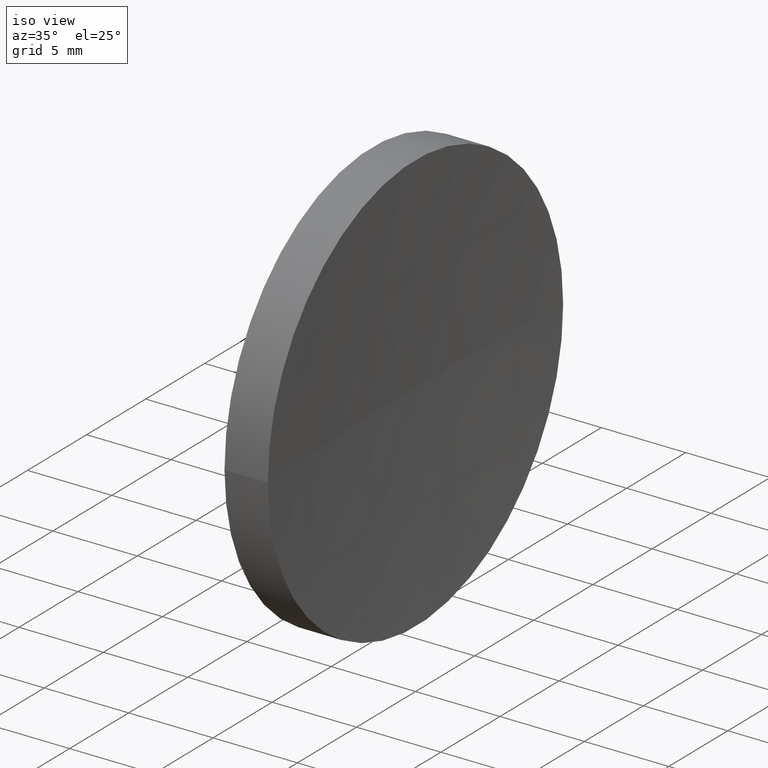
[diagram: clean part render]
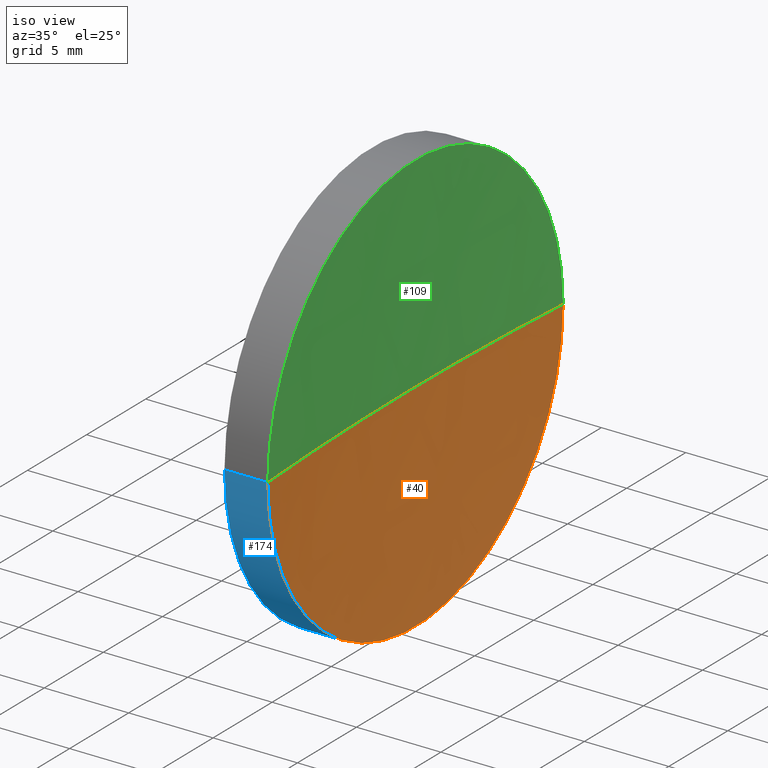
[diagram: same view with three faces highlighted in distinct colors, each labeled with its STEP entity id]
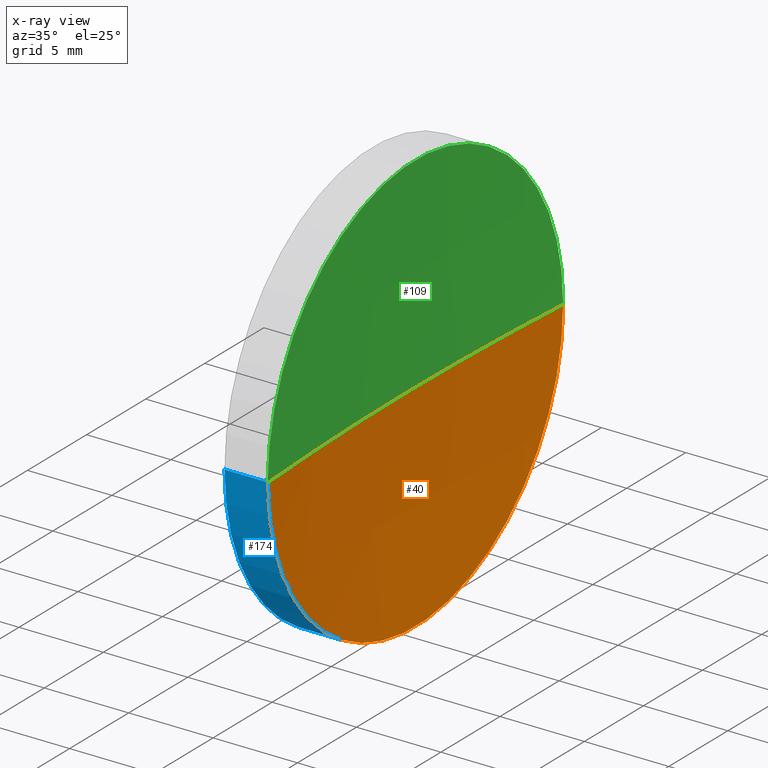
[diagram: x-ray of the same camera — body ghosted, the three highlighted faces saturated]
A machine part, iso view with three faces highlighted in distinct colors.
The next image is the same camera in x-ray (body ghosted, the three faces saturated) — at least one of them is partly hidden behind the body in this view.
Their STEP definitions:

[orange] entity #40 — the highlighted spherical surface has radius 183 mm.
#1 = DIRECTION ( 'NONE',  ( 0.0000000000000000000, -0.0000000000000000000, 1.000000000000000000 ) ) ;
#11 = EDGE_CURVE ( 'NONE', #84, #45, #160, .T. ) ;
#16 = ORIENTED_EDGE ( 'NONE', *, *, #76, .F. ) ;
#19 = ORIENTED_EDGE ( 'NONE', *, *, #35, .F. ) ;
#31 = CARTESIAN_POINT ( 'NONE',  ( 126.3396053945547700, 52.71684047094021300, -1.530808498934187000E-015 ) ) ;
#35 = EDGE_CURVE ( 'NONE', #100, #45, #140, .T. ) ;
#36 = SPHERICAL_SURFACE ( 'NONE', #181, 182.9999999999999700 ) ;
#40 = ADVANCED_FACE ( 'NONE', ( #63 ), #36, .F. ) ;
#42 = DIRECTION ( 'NONE',  ( 0.0000000000000000000, 0.0000000000000000000, -1.000000000000000000 ) ) ;
#45 = VERTEX_POINT ( 'NONE', #128 ) ;
#57 = CARTESIAN_POINT ( 'NONE',  ( 126.3396053945547700, 65.21684047094034000, 0.0000000000000000000 ) ) ;
#60 = DIRECTION ( 'NONE',  ( 0.0000000000000000000, 1.000000000000000000, 1.224646799147353000E-016 ) ) ;
#63 = FACE_OUTER_BOUND ( 'NONE', #127, .T. ) ;
#76 = EDGE_CURVE ( 'NONE', #84, #100, #142, .T. ) ;
#82 = CARTESIAN_POINT ( 'NONE',  ( 308.9121936984948300, 65.21684047094029800, 0.0000000000000000000 ) ) ;
#83 = AXIS2_PLACEMENT_3D ( 'NONE', #57, #133, #86 ) ;
#84 = VERTEX_POINT ( 'NONE', #148 ) ;
#86 = DIRECTION ( 'NONE',  ( 0.0000000000000000000, -1.000000000000000000, 0.0000000000000000000 ) ) ;
#99 = AXIS2_PLACEMENT_3D ( 'NONE', #179, #1, #178 ) ;
#100 = VERTEX_POINT ( 'NONE', #31 ) ;
#112 = DIRECTION ( 'NONE',  ( -6.066792484290472700E-016, 1.000000000000000000, 0.0000000000000000000 ) ) ;
#115 = CARTESIAN_POINT ( 'NONE',  ( 308.9121936984948300, 65.21684047094029800, 0.0000000000000000000 ) ) ;
#119 = AXIS2_PLACEMENT_3D ( 'NONE', #82, #192, #60 ) ;
#127 = EDGE_LOOP ( 'NONE', ( #19, #16, #188 ) ) ;
#128 = CARTESIAN_POINT ( 'NONE',  ( 125.9121936984948500, 65.21684047094018400, 0.0000000000000000000 ) ) ;
#133 = DIRECTION ( 'NONE',  ( -1.000000000000000000, -6.937607244762875000E-016, -0.0000000000000000000 ) ) ;
#140 = CIRCLE ( 'NONE', #119, 183.0000000000000000 ) ;
#142 = CIRCLE ( 'NONE', #83, 12.49999999999994800 ) ;
#148 = CARTESIAN_POINT ( 'NONE',  ( 126.3396053945547700, 77.71684047094029800, 0.0000000000000000000 ) ) ;
#160 = CIRCLE ( 'NONE', #99, 183.0000000000000000 ) ;
#178 = DIRECTION ( 'NONE',  ( 1.000000000000000000, 0.0000000000000000000, 0.0000000000000000000 ) ) ;
#179 = CARTESIAN_POINT ( 'NONE',  ( 308.9121936984948300, 65.21684047094029800, 0.0000000000000000000 ) ) ;
#181 = AXIS2_PLACEMENT_3D ( 'NONE', #115, #42, #112 ) ;
#188 = ORIENTED_EDGE ( 'NONE', *, *, #11, .T. ) ;
#192 = DIRECTION ( 'NONE',  ( -8.496118506040342700E-032, 1.224646799147353200E-016, -1.000000000000000000 ) ) ;

[blue] entity #174 — the highlighted cylindrical surface (partial cylindrical patch) has radius 12.5 mm, axis along (-1, -0, -0).
#9 = DIRECTION ( 'NONE',  ( -1.000000000000000000, -6.937607244762875000E-016, -0.0000000000000000000 ) ) ;
#20 = VECTOR ( 'NONE', #138, 1000.000000000000000 ) ;
#23 = DIRECTION ( 'NONE',  ( -1.000000000000000000, -6.937607244762875000E-016, -0.0000000000000000000 ) ) ;
#28 = ORIENTED_EDGE ( 'NONE', *, *, #186, .F. ) ;
#31 = CARTESIAN_POINT ( 'NONE',  ( 126.3396053945547700, 52.71684047094021300, -1.530808498934187000E-015 ) ) ;
#48 = CARTESIAN_POINT ( 'NONE',  ( 123.7761884081258800, 77.71684047094031200, 0.0000000000000000000 ) ) ;
#55 = LINE ( 'NONE', #171, #20 ) ;
#57 = CARTESIAN_POINT ( 'NONE',  ( 126.3396053945547700, 65.21684047094034000, 0.0000000000000000000 ) ) ;
#59 = VECTOR ( 'NONE', #168, 1000.000000000000000 ) ;
#64 = CIRCLE ( 'NONE', #191, 12.49999999999999100 ) ;
#75 = DIRECTION ( 'NONE',  ( 1.110223024625159300E-015, -1.000000000000000000, 0.0000000000000000000 ) ) ;
#76 = EDGE_CURVE ( 'NONE', #84, #100, #142, .T. ) ;
#83 = AXIS2_PLACEMENT_3D ( 'NONE', #57, #133, #86 ) ;
#84 = VERTEX_POINT ( 'NONE', #148 ) ;
#86 = DIRECTION ( 'NONE',  ( 0.0000000000000000000, -1.000000000000000000, 0.0000000000000000000 ) ) ;
#94 = ORIENTED_EDGE ( 'NONE', *, *, #189, .T. ) ;
#100 = VERTEX_POINT ( 'NONE', #31 ) ;
#106 = VERTEX_POINT ( 'NONE', #48 ) ;
#116 = ORIENTED_EDGE ( 'NONE', *, *, #76, .T. ) ;
#121 = CARTESIAN_POINT ( 'NONE',  ( 115.9444912979631500, 77.71684047094029800, 1.530808498934187800E-015 ) ) ;
#123 = EDGE_LOOP ( 'NONE', ( #28, #116, #94, #158 ) ) ;
#129 = VERTEX_POINT ( 'NONE', #130 ) ;
#130 = CARTESIAN_POINT ( 'NONE',  ( 123.7761884081259000, 52.71684047094031200, -1.530808498934189900E-015 ) ) ;
#133 = DIRECTION ( 'NONE',  ( -1.000000000000000000, -6.937607244762875000E-016, -0.0000000000000000000 ) ) ;
#134 = AXIS2_PLACEMENT_3D ( 'NONE', #166, #23, #75 ) ;
#137 = LINE ( 'NONE', #121, #59 ) ;
#138 = DIRECTION ( 'NONE',  ( -1.000000000000000000, -6.937607244762875000E-016, -0.0000000000000000000 ) ) ;
#142 = CIRCLE ( 'NONE', #83, 12.49999999999994800 ) ;
#148 = CARTESIAN_POINT ( 'NONE',  ( 126.3396053945547700, 77.71684047094029800, 0.0000000000000000000 ) ) ;
#154 = DIRECTION ( 'NONE',  ( 1.110223024625157300E-015, -1.000000000000000000, 0.0000000000000000000 ) ) ;
#158 = ORIENTED_EDGE ( 'NONE', *, *, #173, .F. ) ;
#166 = CARTESIAN_POINT ( 'NONE',  ( 115.9444912979631700, 65.21684047094032600, 0.0000000000000000000 ) ) ;
#167 = CARTESIAN_POINT ( 'NONE',  ( 123.7761884081259000, 65.21684047094032600, 0.0000000000000000000 ) ) ;
#168 = DIRECTION ( 'NONE',  ( -1.000000000000000000, -6.937607244762875000E-016, -0.0000000000000000000 ) ) ;
#171 = CARTESIAN_POINT ( 'NONE',  ( 115.9444912979631800, 52.71684047094035500, 0.0000000000000000000 ) ) ;
#173 = EDGE_CURVE ( 'NONE', #106, #129, #64, .T. ) ;
#174 = ADVANCED_FACE ( 'NONE', ( #182 ), #175, .T. ) ;
#175 = CYLINDRICAL_SURFACE ( 'NONE', #134, 12.49999999999997000 ) ;
#182 = FACE_OUTER_BOUND ( 'NONE', #123, .T. ) ;
#186 = EDGE_CURVE ( 'NONE', #84, #106, #137, .T. ) ;
#189 = EDGE_CURVE ( 'NONE', #100, #129, #55, .T. ) ;
#191 = AXIS2_PLACEMENT_3D ( 'NONE', #167, #9, #154 ) ;

[green] entity #109 — the highlighted spherical surface has radius 183 mm.
#1 = DIRECTION ( 'NONE',  ( 0.0000000000000000000, -0.0000000000000000000, 1.000000000000000000 ) ) ;
#8 = AXIS2_PLACEMENT_3D ( 'NONE', #71, #177, #96 ) ;
#11 = EDGE_CURVE ( 'NONE', #84, #45, #160, .T. ) ;
#13 = ORIENTED_EDGE ( 'NONE', *, *, #11, .F. ) ;
#31 = CARTESIAN_POINT ( 'NONE',  ( 126.3396053945547700, 52.71684047094021300, -1.530808498934187000E-015 ) ) ;
#35 = EDGE_CURVE ( 'NONE', #100, #45, #140, .T. ) ;
#39 = EDGE_CURVE ( 'NONE', #100, #84, #146, .T. ) ;
#45 = VERTEX_POINT ( 'NONE', #128 ) ;
#47 = SPHERICAL_SURFACE ( 'NONE', #143, 182.9999999999999700 ) ;
#60 = DIRECTION ( 'NONE',  ( 0.0000000000000000000, 1.000000000000000000, 1.224646799147353000E-016 ) ) ;
#61 = DIRECTION ( 'NONE',  ( -6.066792484290472700E-016, 1.000000000000000000, 0.0000000000000000000 ) ) ;
#71 = CARTESIAN_POINT ( 'NONE',  ( 126.3396053945547700, 65.21684047094034000, 0.0000000000000000000 ) ) ;
#81 = ORIENTED_EDGE ( 'NONE', *, *, #39, .F. ) ;
#82 = CARTESIAN_POINT ( 'NONE',  ( 308.9121936984948300, 65.21684047094029800, 0.0000000000000000000 ) ) ;
#84 = VERTEX_POINT ( 'NONE', #148 ) ;
#85 = CARTESIAN_POINT ( 'NONE',  ( 308.9121936984948300, 65.21684047094029800, 0.0000000000000000000 ) ) ;
#96 = DIRECTION ( 'NONE',  ( 0.0000000000000000000, -1.000000000000000000, 0.0000000000000000000 ) ) ;
#99 = AXIS2_PLACEMENT_3D ( 'NONE', #179, #1, #178 ) ;
#100 = VERTEX_POINT ( 'NONE', #31 ) ;
#103 = DIRECTION ( 'NONE',  ( 0.0000000000000000000, 0.0000000000000000000, -1.000000000000000000 ) ) ;
#109 = ADVANCED_FACE ( 'NONE', ( #113 ), #47, .F. ) ;
#113 = FACE_OUTER_BOUND ( 'NONE', #135, .T. ) ;
#119 = AXIS2_PLACEMENT_3D ( 'NONE', #82, #192, #60 ) ;
#122 = ORIENTED_EDGE ( 'NONE', *, *, #35, .T. ) ;
#128 = CARTESIAN_POINT ( 'NONE',  ( 125.9121936984948500, 65.21684047094018400, 0.0000000000000000000 ) ) ;
#135 = EDGE_LOOP ( 'NONE', ( #81, #122, #13 ) ) ;
#140 = CIRCLE ( 'NONE', #119, 183.0000000000000000 ) ;
#143 = AXIS2_PLACEMENT_3D ( 'NONE', #85, #103, #61 ) ;
#146 = CIRCLE ( 'NONE', #8, 12.49999999999994800 ) ;
#148 = CARTESIAN_POINT ( 'NONE',  ( 126.3396053945547700, 77.71684047094029800, 0.0000000000000000000 ) ) ;
#160 = CIRCLE ( 'NONE', #99, 183.0000000000000000 ) ;
#177 = DIRECTION ( 'NONE',  ( -1.000000000000000000, -6.937607244762875000E-016, -0.0000000000000000000 ) ) ;
#178 = DIRECTION ( 'NONE',  ( 1.000000000000000000, 0.0000000000000000000, 0.0000000000000000000 ) ) ;
#179 = CARTESIAN_POINT ( 'NONE',  ( 308.9121936984948300, 65.21684047094029800, 0.0000000000000000000 ) ) ;
#192 = DIRECTION ( 'NONE',  ( -8.496118506040342700E-032, 1.224646799147353200E-016, -1.000000000000000000 ) ) ;